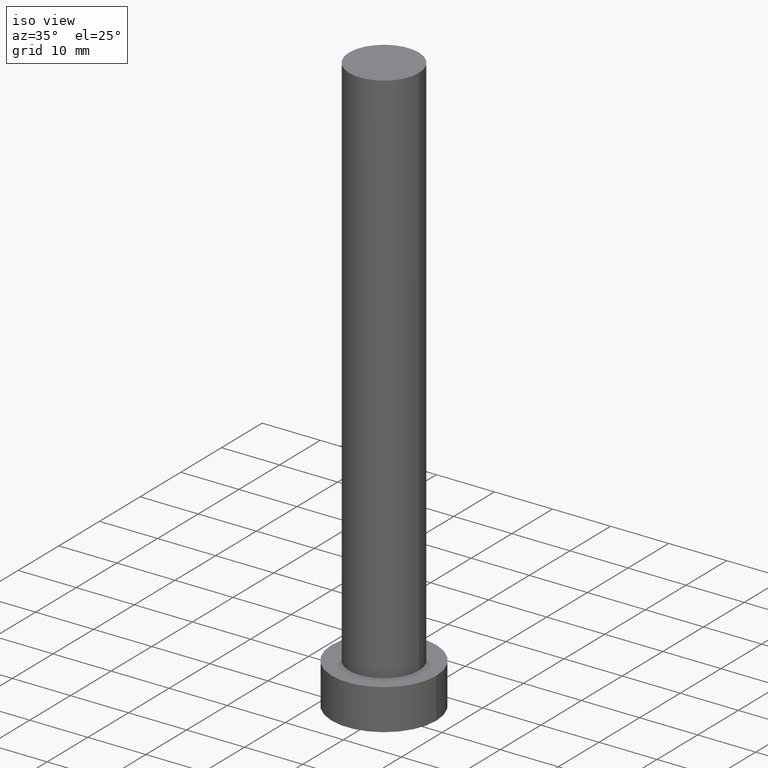
[diagram: clean part render]
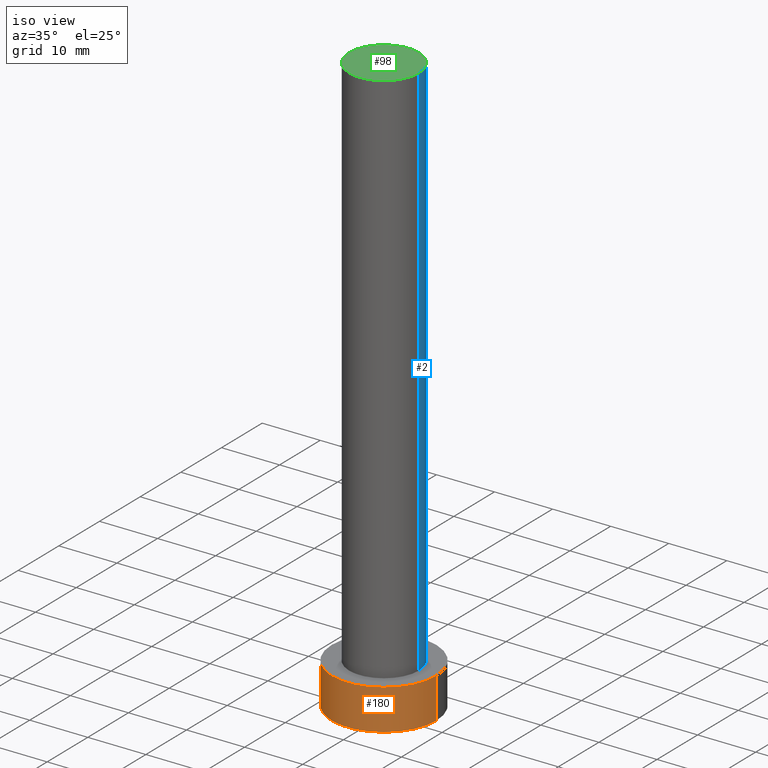
[diagram: same view with three faces highlighted in distinct colors, each labeled with its STEP entity id]
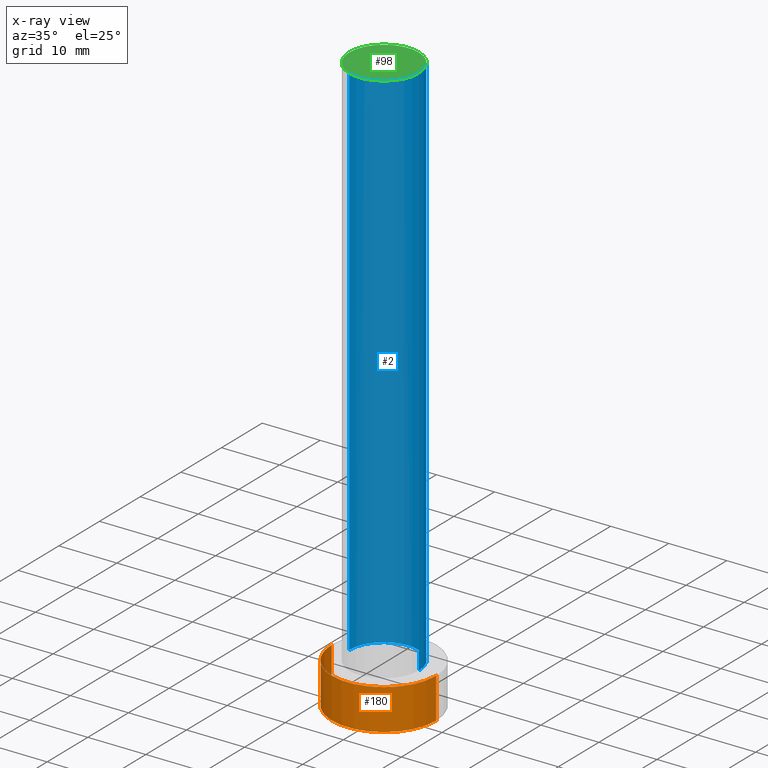
[diagram: x-ray of the same camera — body ghosted, the three highlighted faces saturated]
A machine part, iso view with three faces highlighted in distinct colors.
The next image is the same camera in x-ray (body ghosted, the three faces saturated) — at least one of them is partly hidden behind the body in this view.
Their STEP definitions:

[orange] entity #180 — the highlighted cylindrical surface (partial cylindrical patch) has radius 9 mm, axis along (-0, -0, -1).
#1 = VECTOR ( 'NONE', #46, 1000.000000000000000 ) ;
#4 = CYLINDRICAL_SURFACE ( 'NONE', #236, 9.000000000000000000 ) ;
#13 = DIRECTION ( 'NONE',  ( -0.000000000000000000, -0.000000000000000000, -1.000000000000000000 ) ) ;
#16 = VERTEX_POINT ( 'NONE', #170 ) ;
#20 = FACE_OUTER_BOUND ( 'NONE', #79, .T. ) ;
#23 = CIRCLE ( 'NONE', #157, 9.000000000000000000 ) ;
#34 = EDGE_CURVE ( 'NONE', #146, #16, #66, .T. ) ;
#39 = VERTEX_POINT ( 'NONE', #208 ) ;
#46 = DIRECTION ( 'NONE',  ( -0.000000000000000000, -0.000000000000000000, -1.000000000000000000 ) ) ;
#47 = CARTESIAN_POINT ( 'NONE',  ( 0.000000000000000000, 0.000000000000000000, 0.000000000000000000 ) ) ;
#58 = EDGE_CURVE ( 'NONE', #16, #39, #23, .T. ) ;
#64 = CARTESIAN_POINT ( 'NONE',  ( 9.000000000000000000, 1.102182119232617714E-15, 7.000000000000000000 ) ) ;
#65 = EDGE_CURVE ( 'NONE', #238, #39, #112, .T. ) ;
#66 = LINE ( 'NONE', #221, #1 ) ;
#78 = CARTESIAN_POINT ( 'NONE',  ( -9.000000000000000000, 0.000000000000000000, 7.000000000000000000 ) ) ;
#79 = EDGE_LOOP ( 'NONE', ( #255, #213, #196, #117 ) ) ;
#89 = DIRECTION ( 'NONE',  ( 0.000000000000000000, 0.000000000000000000, 1.000000000000000000 ) ) ;
#112 = LINE ( 'NONE', #224, #174 ) ;
#117 = ORIENTED_EDGE ( 'NONE', *, *, #58, .T. ) ;
#123 = AXIS2_PLACEMENT_3D ( 'NONE', #141, #189, #205 ) ;
#141 = CARTESIAN_POINT ( 'NONE',  ( 0.000000000000000000, 0.000000000000000000, 7.000000000000000000 ) ) ;
#146 = VERTEX_POINT ( 'NONE', #78 ) ;
#157 = AXIS2_PLACEMENT_3D ( 'NONE', #47, #89, #163 ) ;
#163 = DIRECTION ( 'NONE',  ( 1.000000000000000000, 0.000000000000000000, 0.000000000000000000 ) ) ;
#170 = CARTESIAN_POINT ( 'NONE',  ( -9.000000000000000000, 0.000000000000000000, 0.000000000000000000 ) ) ;
#174 = VECTOR ( 'NONE', #13, 1000.000000000000000 ) ;
#180 = ADVANCED_FACE ( 'NONE', ( #20 ), #4, .T. ) ;
#189 = DIRECTION ( 'NONE',  ( 0.000000000000000000, 0.000000000000000000, 1.000000000000000000 ) ) ;
#195 = CIRCLE ( 'NONE', #123, 9.000000000000000000 ) ;
#196 = ORIENTED_EDGE ( 'NONE', *, *, #34, .T. ) ;
#197 = DIRECTION ( 'NONE',  ( -1.000000000000000000, 0.000000000000000000, 0.000000000000000000 ) ) ;
#205 = DIRECTION ( 'NONE',  ( 1.000000000000000000, 0.000000000000000000, 0.000000000000000000 ) ) ;
#208 = CARTESIAN_POINT ( 'NONE',  ( 9.000000000000000000, 1.102182119232617714E-15, 0.000000000000000000 ) ) ;
#213 = ORIENTED_EDGE ( 'NONE', *, *, #242, .F. ) ;
#221 = CARTESIAN_POINT ( 'NONE',  ( -9.000000000000000000, 0.000000000000000000, 7.000000000000000000 ) ) ;
#224 = CARTESIAN_POINT ( 'NONE',  ( 9.000000000000000000, 1.102182119232617714E-15, 7.000000000000000000 ) ) ;
#233 = DIRECTION ( 'NONE',  ( -0.000000000000000000, -0.000000000000000000, -1.000000000000000000 ) ) ;
#235 = CARTESIAN_POINT ( 'NONE',  ( 0.000000000000000000, 0.000000000000000000, 7.000000000000000000 ) ) ;
#236 = AXIS2_PLACEMENT_3D ( 'NONE', #235, #233, #197 ) ;
#238 = VERTEX_POINT ( 'NONE', #64 ) ;
#242 = EDGE_CURVE ( 'NONE', #146, #238, #195, .T. ) ;
#255 = ORIENTED_EDGE ( 'NONE', *, *, #65, .F. ) ;

[blue] entity #2 — the highlighted cylindrical surface (partial cylindrical patch) has radius 6 mm, axis along (-0, -0, -1).
#2 = ADVANCED_FACE ( 'NONE', ( #95 ), #214, .T. ) ;
#5 = VECTOR ( 'NONE', #252, 1000.000000000000000 ) ;
#12 = CARTESIAN_POINT ( 'NONE',  ( 6.000000000000000888, 7.347880794884119736E-16, 100.0000000000000000 ) ) ;
#18 = EDGE_CURVE ( 'NONE', #35, #142, #125, .T. ) ;
#21 = EDGE_LOOP ( 'NONE', ( #198, #173, #216, #121 ) ) ;
#35 = VERTEX_POINT ( 'NONE', #12 ) ;
#53 = VERTEX_POINT ( 'NONE', #249 ) ;
#55 = CARTESIAN_POINT ( 'NONE',  ( -6.000000000000000888, 0.000000000000000000, 100.0000000000000000 ) ) ;
#61 = VECTOR ( 'NONE', #231, 1000.000000000000000 ) ;
#72 = LINE ( 'NONE', #227, #61 ) ;
#74 = CARTESIAN_POINT ( 'NONE',  ( 0.000000000000000000, 0.000000000000000000, 100.0000000000000000 ) ) ;
#81 = DIRECTION ( 'NONE',  ( -0.000000000000000000, -0.000000000000000000, -1.000000000000000000 ) ) ;
#90 = EDGE_CURVE ( 'NONE', #35, #53, #166, .T. ) ;
#93 = AXIS2_PLACEMENT_3D ( 'NONE', #134, #94, #118 ) ;
#94 = DIRECTION ( 'NONE',  ( 0.000000000000000000, 0.000000000000000000, 1.000000000000000000 ) ) ;
#95 = FACE_OUTER_BOUND ( 'NONE', #21, .T. ) ;
#97 = CARTESIAN_POINT ( 'NONE',  ( -6.000000000000000888, 0.000000000000000000, 7.000000000000000000 ) ) ;
#101 = AXIS2_PLACEMENT_3D ( 'NONE', #74, #246, #128 ) ;
#118 = DIRECTION ( 'NONE',  ( 1.000000000000000000, 0.000000000000000000, 0.000000000000000000 ) ) ;
#119 = EDGE_CURVE ( 'NONE', #142, #172, #72, .T. ) ;
#121 = ORIENTED_EDGE ( 'NONE', *, *, #119, .F. ) ;
#125 = CIRCLE ( 'NONE', #101, 6.000000000000000888 ) ;
#126 = DIRECTION ( 'NONE',  ( -1.000000000000000000, 0.000000000000000000, 0.000000000000000000 ) ) ;
#128 = DIRECTION ( 'NONE',  ( 1.000000000000000000, 0.000000000000000000, 0.000000000000000000 ) ) ;
#134 = CARTESIAN_POINT ( 'NONE',  ( 0.000000000000000000, 0.000000000000000000, 7.000000000000000000 ) ) ;
#142 = VERTEX_POINT ( 'NONE', #55 ) ;
#158 = EDGE_CURVE ( 'NONE', #53, #172, #217, .T. ) ;
#166 = LINE ( 'NONE', #193, #5 ) ;
#172 = VERTEX_POINT ( 'NONE', #97 ) ;
#173 = ORIENTED_EDGE ( 'NONE', *, *, #90, .T. ) ;
#177 = CARTESIAN_POINT ( 'NONE',  ( 0.000000000000000000, 0.000000000000000000, 100.0000000000000000 ) ) ;
#193 = CARTESIAN_POINT ( 'NONE',  ( 6.000000000000000888, 7.347880794884119736E-16, 100.0000000000000000 ) ) ;
#198 = ORIENTED_EDGE ( 'NONE', *, *, #18, .F. ) ;
#214 = CYLINDRICAL_SURFACE ( 'NONE', #220, 6.000000000000000888 ) ;
#216 = ORIENTED_EDGE ( 'NONE', *, *, #158, .T. ) ;
#217 = CIRCLE ( 'NONE', #93, 6.000000000000000888 ) ;
#220 = AXIS2_PLACEMENT_3D ( 'NONE', #177, #81, #126 ) ;
#227 = CARTESIAN_POINT ( 'NONE',  ( -6.000000000000000888, 0.000000000000000000, 100.0000000000000000 ) ) ;
#231 = DIRECTION ( 'NONE',  ( -0.000000000000000000, -0.000000000000000000, -1.000000000000000000 ) ) ;
#246 = DIRECTION ( 'NONE',  ( 0.000000000000000000, 0.000000000000000000, 1.000000000000000000 ) ) ;
#249 = CARTESIAN_POINT ( 'NONE',  ( 6.000000000000000888, 7.347880794884119736E-16, 7.000000000000000000 ) ) ;
#252 = DIRECTION ( 'NONE',  ( -0.000000000000000000, -0.000000000000000000, -1.000000000000000000 ) ) ;

[green] entity #98 — the highlighted planar face has unit normal (0, 0, 1).
#12 = CARTESIAN_POINT ( 'NONE',  ( 6.000000000000000888, 7.347880794884119736E-16, 100.0000000000000000 ) ) ;
#17 = DIRECTION ( 'NONE',  ( 0.000000000000000000, 0.000000000000000000, 1.000000000000000000 ) ) ;
#18 = EDGE_CURVE ( 'NONE', #35, #142, #125, .T. ) ;
#35 = VERTEX_POINT ( 'NONE', #12 ) ;
#36 = CARTESIAN_POINT ( 'NONE',  ( 0.000000000000000000, 0.000000000000000000, 100.0000000000000000 ) ) ;
#49 = AXIS2_PLACEMENT_3D ( 'NONE', #36, #17, #176 ) ;
#55 = CARTESIAN_POINT ( 'NONE',  ( -6.000000000000000888, 0.000000000000000000, 100.0000000000000000 ) ) ;
#74 = CARTESIAN_POINT ( 'NONE',  ( 0.000000000000000000, 0.000000000000000000, 100.0000000000000000 ) ) ;
#98 = ADVANCED_FACE ( 'NONE', ( #133 ), #107, .T. ) ;
#101 = AXIS2_PLACEMENT_3D ( 'NONE', #74, #246, #128 ) ;
#103 = CIRCLE ( 'NONE', #49, 6.000000000000000888 ) ;
#107 = PLANE ( 'NONE',  #160 ) ;
#125 = CIRCLE ( 'NONE', #101, 6.000000000000000888 ) ;
#128 = DIRECTION ( 'NONE',  ( 1.000000000000000000, 0.000000000000000000, 0.000000000000000000 ) ) ;
#133 = FACE_OUTER_BOUND ( 'NONE', #232, .T. ) ;
#136 = ORIENTED_EDGE ( 'NONE', *, *, #18, .T. ) ;
#142 = VERTEX_POINT ( 'NONE', #55 ) ;
#147 = DIRECTION ( 'NONE',  ( 0.000000000000000000, 0.000000000000000000, 1.000000000000000000 ) ) ;
#160 = AXIS2_PLACEMENT_3D ( 'NONE', #190, #147, #251 ) ;
#176 = DIRECTION ( 'NONE',  ( 1.000000000000000000, 0.000000000000000000, 0.000000000000000000 ) ) ;
#183 = EDGE_CURVE ( 'NONE', #142, #35, #103, .T. ) ;
#187 = ORIENTED_EDGE ( 'NONE', *, *, #183, .T. ) ;
#190 = CARTESIAN_POINT ( 'NONE',  ( 0.000000000000000000, 0.000000000000000000, 100.0000000000000000 ) ) ;
#232 = EDGE_LOOP ( 'NONE', ( #187, #136 ) ) ;
#246 = DIRECTION ( 'NONE',  ( 0.000000000000000000, 0.000000000000000000, 1.000000000000000000 ) ) ;
#251 = DIRECTION ( 'NONE',  ( 1.000000000000000000, 0.000000000000000000, -0.000000000000000000 ) ) ;